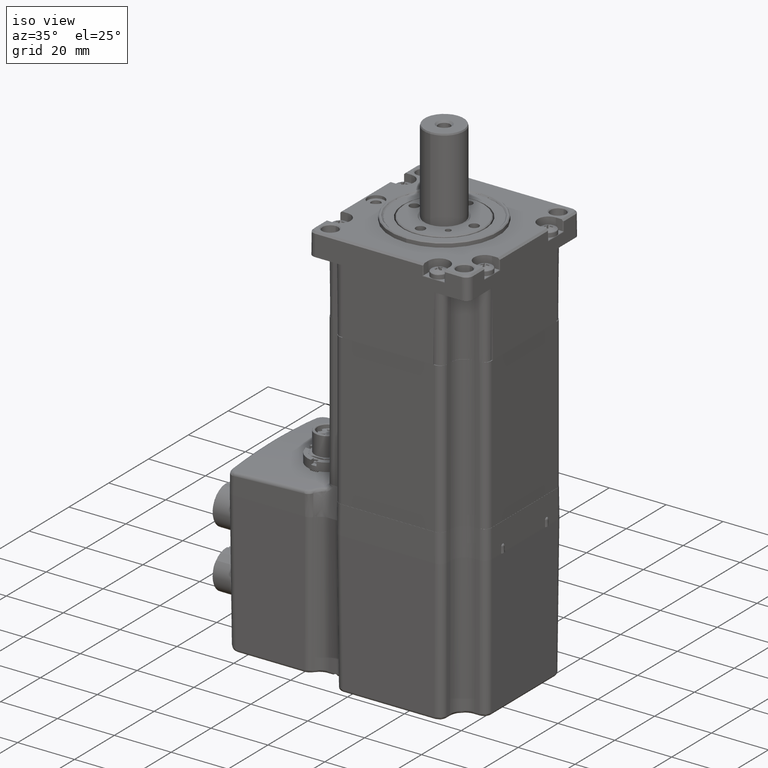
[diagram: clean part render]
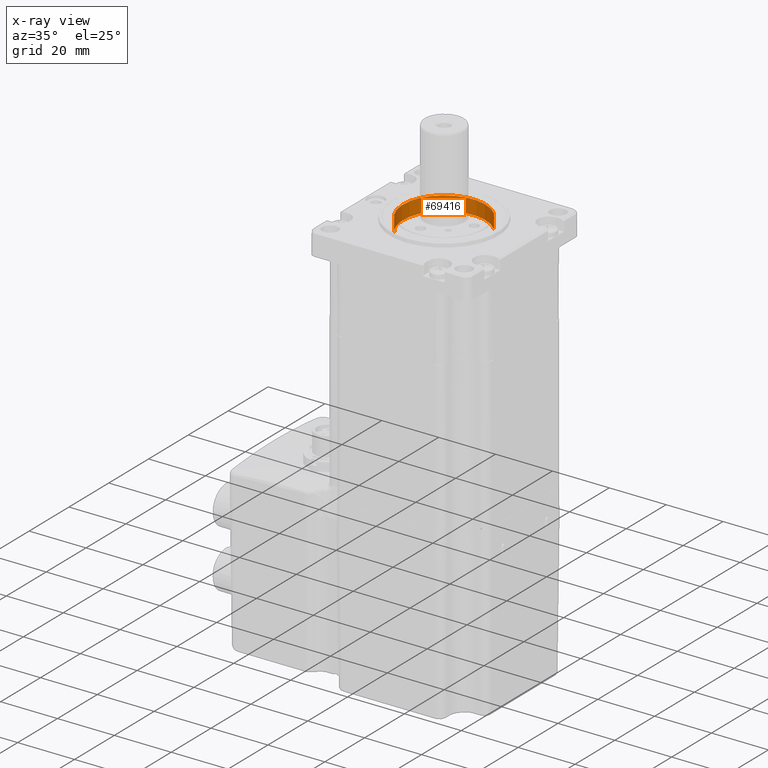
[diagram: x-ray — body ghosted, one internal face saturated and labeled with its STEP entity id]
A machine part, iso view, then the same camera in x-ray: the body is ghosted and one INTERNAL B-rep face — a face not visible from any outside direction — is saturated and labeled: STEP entity #69416.
In plain terms, the highlighted cylindrical surface (partial cylindrical patch) has radius 14.5 mm, axis along (0, -0, -1).
Its self-contained STEP definition (entity closure, byte-faithful):
#589 = CARTESIAN_POINT ( 'NONE',  ( -10.45113832400815923, -10.05105505568683810, 41.99999999999997158 ) ) ;
#740 = DIRECTION ( 'NONE',  ( -0.7207681602764247630, -0.6931762107370230686, 0.000000000000000000 ) ) ;
#2474 = AXIS2_PLACEMENT_3D ( 'NONE', #30825, #107256, #740 ) ;
#3918 = VERTEX_POINT ( 'NONE', #42417 ) ;
#5512 = CARTESIAN_POINT ( 'NONE',  ( -1.094764425253763337E-44, 5.473822126268816683E-45, 36.99999999999997868 ) ) ;
#9073 = CYLINDRICAL_SURFACE ( 'NONE', #39214, 14.50000000000000178 ) ;
#18518 = FACE_OUTER_BOUND ( 'NONE', #119991, .T. ) ;
#21366 = VECTOR ( 'NONE', #29231, 1000.000000000000000 ) ;
#21429 = CARTESIAN_POINT ( 'NONE',  ( -10.45113832400815923, -10.05105505568683810, 41.99999999999997158 ) ) ;
#26836 = ORIENTED_EDGE ( 'NONE', *, *, #56054, .F. ) ;
#29172 = CARTESIAN_POINT ( 'NONE',  ( -3.349083428091448517E-29, 1.561659594700542685E-29, 41.99999999999997158 ) ) ;
#29231 = DIRECTION ( 'NONE',  ( 6.698166856182897876E-30, -3.123319189401087472E-30, -1.000000000000000000 ) ) ;
#30825 = CARTESIAN_POINT ( 'NONE',  ( -3.349083428091448517E-29, 1.561659594700542685E-29, 41.99999999999997158 ) ) ;
#39214 = AXIS2_PLACEMENT_3D ( 'NONE', #29172, #84299, #74881 ) ;
#39235 = EDGE_CURVE ( 'NONE', #56324, #55168, #96919, .T. ) ;
#42417 = CARTESIAN_POINT ( 'NONE',  ( -10.45113832400815923, -10.05105505568683810, 36.99999999999997868 ) ) ;
#49135 = ORIENTED_EDGE ( 'NONE', *, *, #87720, .T. ) ;
#52527 = CARTESIAN_POINT ( 'NONE',  ( 10.45113832400816101, 10.05105505568683633, 36.99999999999997868 ) ) ;
#55168 = VERTEX_POINT ( 'NONE', #52527 ) ;
#56054 = EDGE_CURVE ( 'NONE', #55168, #3918, #73496, .T. ) ;
#56324 = VERTEX_POINT ( 'NONE', #68730 ) ;
#57188 = DIRECTION ( 'NONE',  ( 6.698166856182897876E-30, -3.123319189401087472E-30, -1.000000000000000000 ) ) ;
#58029 = CARTESIAN_POINT ( 'NONE',  ( 10.45113832400816101, 10.05105505568683633, 41.99999999999997158 ) ) ;
#68730 = CARTESIAN_POINT ( 'NONE',  ( 10.45113832400816101, 10.05105505568683633, 41.99999999999997158 ) ) ;
#69416 = ADVANCED_FACE ( 'NONE', ( #18518 ), #9073, .F. ) ;
#70727 = DIRECTION ( 'NONE',  ( -0.7207681602764247630, -0.6931762107370230686, 0.000000000000000000 ) ) ;
#73496 = CIRCLE ( 'NONE', #91620, 14.50000000000000178 ) ;
#74692 = ORIENTED_EDGE ( 'NONE', *, *, #80060, .T. ) ;
#74881 = DIRECTION ( 'NONE',  ( 0.7207681602764247630, 0.6931762107370230686, 0.000000000000000000 ) ) ;
#80060 = EDGE_CURVE ( 'NONE', #56324, #87241, #118483, .T. ) ;
#84299 = DIRECTION ( 'NONE',  ( 6.698166856182897876E-30, -3.123319189401087472E-30, -1.000000000000000000 ) ) ;
#87241 = VERTEX_POINT ( 'NONE', #589 ) ;
#87720 = EDGE_CURVE ( 'NONE', #87241, #3918, #104873, .T. ) ;
#91074 = ORIENTED_EDGE ( 'NONE', *, *, #39235, .F. ) ;
#91620 = AXIS2_PLACEMENT_3D ( 'NONE', #5512, #118949, #70727 ) ;
#96919 = LINE ( 'NONE', #58029, #21366 ) ;
#104873 = LINE ( 'NONE', #21429, #120877 ) ;
#107256 = DIRECTION ( 'NONE',  ( -6.698166856182897876E-30, 3.123319189401087472E-30, 1.000000000000000000 ) ) ;
#118483 = CIRCLE ( 'NONE', #2474, 14.50000000000000178 ) ;
#118949 = DIRECTION ( 'NONE',  ( -6.698166856182897876E-30, 3.123319189401087472E-30, 1.000000000000000000 ) ) ;
#119991 = EDGE_LOOP ( 'NONE', ( #74692, #49135, #26836, #91074 ) ) ;
#120877 = VECTOR ( 'NONE', #57188, 1000.000000000000000 ) ;